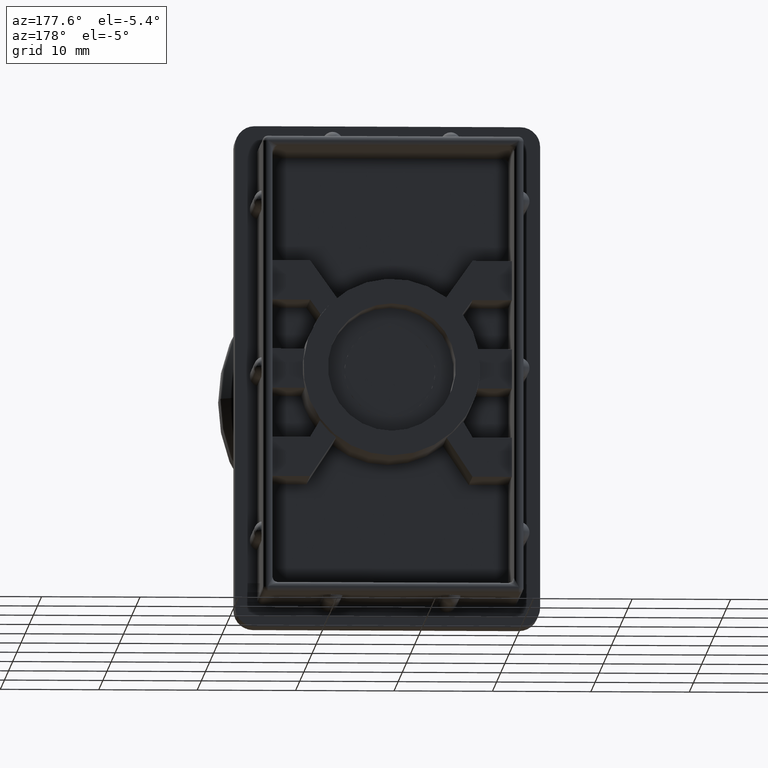
[diagram: clean part render]
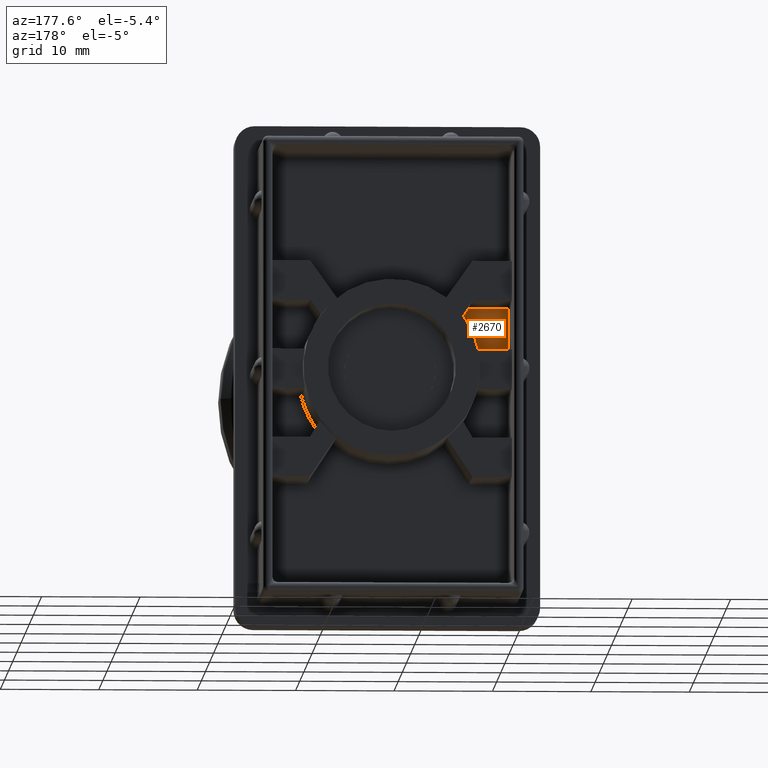
[diagram: same view with one face highlighted and labeled with its STEP entity id]
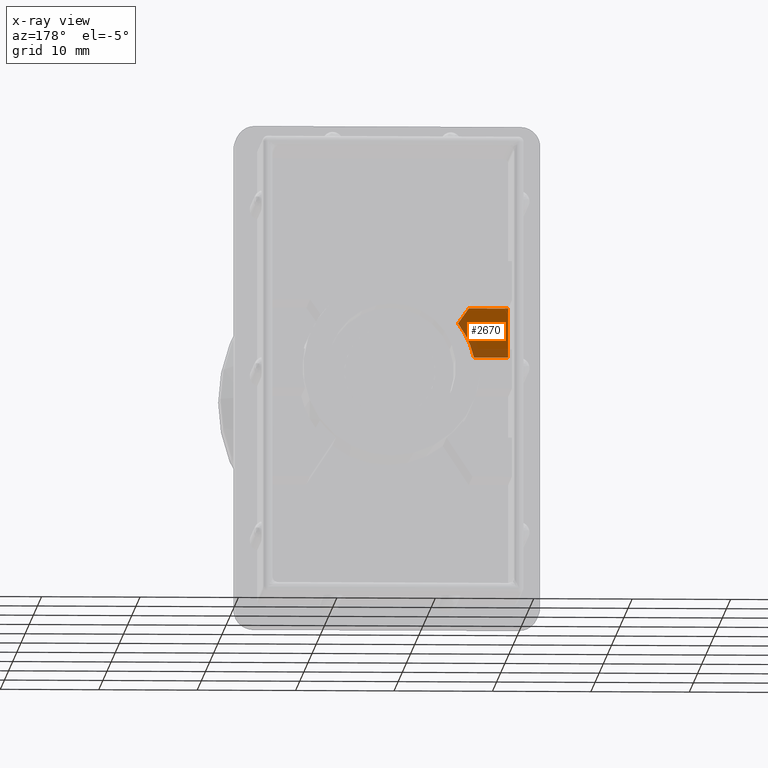
[diagram: x-ray of the same camera — body ghosted, the highlighted face saturated]
A machine part, auxiliary view. The second image highlights one B-rep face of the part: STEP entity #2670.
The next image is the same camera in x-ray: the body ghosted, the highlighted face saturated — about 27% of this face is hidden behind the body in this view.
In plain terms, the highlighted planar face has unit normal (0, -1, -0).
Its self-contained STEP definition (entity closure, byte-faithful):
#189=CIRCLE('',#2921,9.);
#265=PLANE('',#2920);
#414=FACE_OUTER_BOUND('',#586,.T.);
#586=EDGE_LOOP('',(#2426,#2427,#2428,#2429,#2430));
#685=LINE('',#4280,#901);
#796=LINE('',#5417,#1012);
#798=LINE('',#5425,#1014);
#806=LINE('',#5440,#1022);
#901=VECTOR('',#3246,5.);
#1012=VECTOR('',#3579,3.47503561260788);
#1014=VECTOR('',#3587,1.8894836679691);
#1022=VECTOR('',#3603,4.);
#1201=VERTEX_POINT('',#4277);
#1202=VERTEX_POINT('',#4279);
#1318=VERTEX_POINT('',#5414);
#1319=VERTEX_POINT('',#5421);
#1321=VERTEX_POINT('',#5424);
#1495=EDGE_CURVE('',#1201,#1202,#685,.T.);
#1684=EDGE_CURVE('',#1318,#1202,#796,.T.);
#1687=EDGE_CURVE('',#1321,#1319,#798,.T.);
#1696=EDGE_CURVE('',#1201,#1321,#806,.T.);
#1709=EDGE_CURVE('',#1318,#1319,#189,.T.);
#2426=ORIENTED_EDGE('',*,*,#1684,.T.);
#2427=ORIENTED_EDGE('',*,*,#1495,.F.);
#2428=ORIENTED_EDGE('',*,*,#1696,.T.);
#2429=ORIENTED_EDGE('',*,*,#1687,.T.);
#2430=ORIENTED_EDGE('',*,*,#1709,.F.);
#2670=ADVANCED_FACE('',(#414),#265,.F.);
#2920=AXIS2_PLACEMENT_3D('',#5466,#3632,#3633);
#2921=AXIS2_PLACEMENT_3D('',#5467,#3634,#3635);
#3246=DIRECTION('',(1.,0.,2.49488320140485E-16));
#3579=DIRECTION('',(0.,0.,1.));
#3587=DIRECTION('',(0.814534152606998,0.,-0.580115604200403));
#3603=DIRECTION('',(0.,0.,-1.));
#3632=DIRECTION('center_axis',(0.,1.,0.));
#3633=DIRECTION('ref_axis',(0.,0.,1.));
#3634=DIRECTION('center_axis',(0.,-1.,0.));
#3635=DIRECTION('ref_axis',(-1.,0.,0.));
#4277=CARTESIAN_POINT('',(16.25,14.,-0.999999999999991));
#4279=CARTESIAN_POINT('',(21.25,14.,-0.99999999999999));
#4280=CARTESIAN_POINT('',(0.999999999999991,14.,-0.999999999999994));
#5414=CARTESIAN_POINT('',(21.25,14.,-4.47503561260787));
#5417=CARTESIAN_POINT('',(21.25,14.,-7.12499999999999));
#5421=CARTESIAN_POINT('',(17.789048978354,14.,-6.09611895967068));
#5424=CARTESIAN_POINT('',(16.25,14.,-4.99999999999999));
#5425=CARTESIAN_POINT('',(21.3004942668728,14.,-8.59698917934899));
#5440=CARTESIAN_POINT('',(16.25,14.,-9.12499999999999));
#5466=CARTESIAN_POINT('Origin',(23.25,14.,-13.25));
#5467=CARTESIAN_POINT('Origin',(23.25,14.,-13.25));